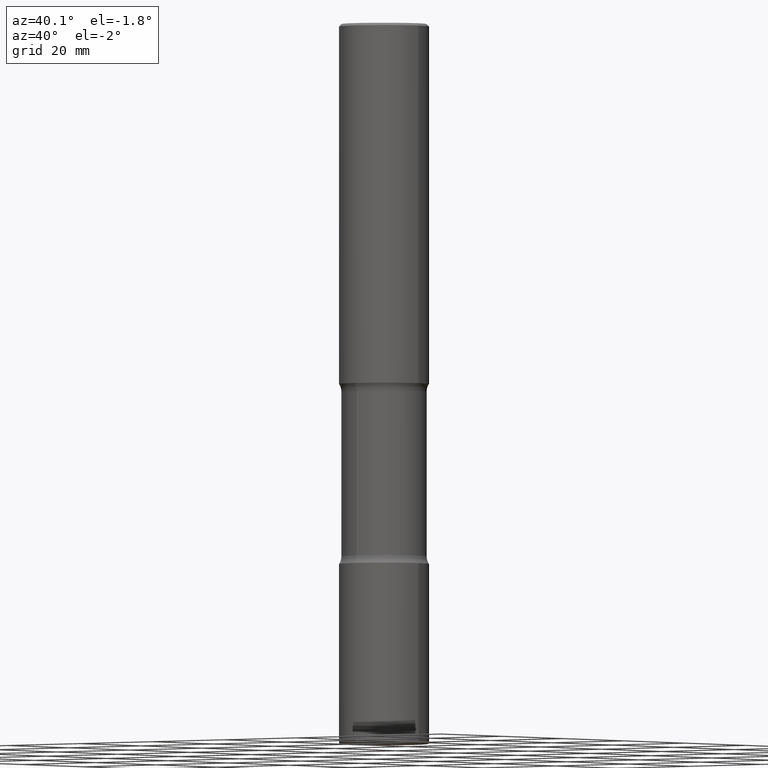
[diagram: clean part render]
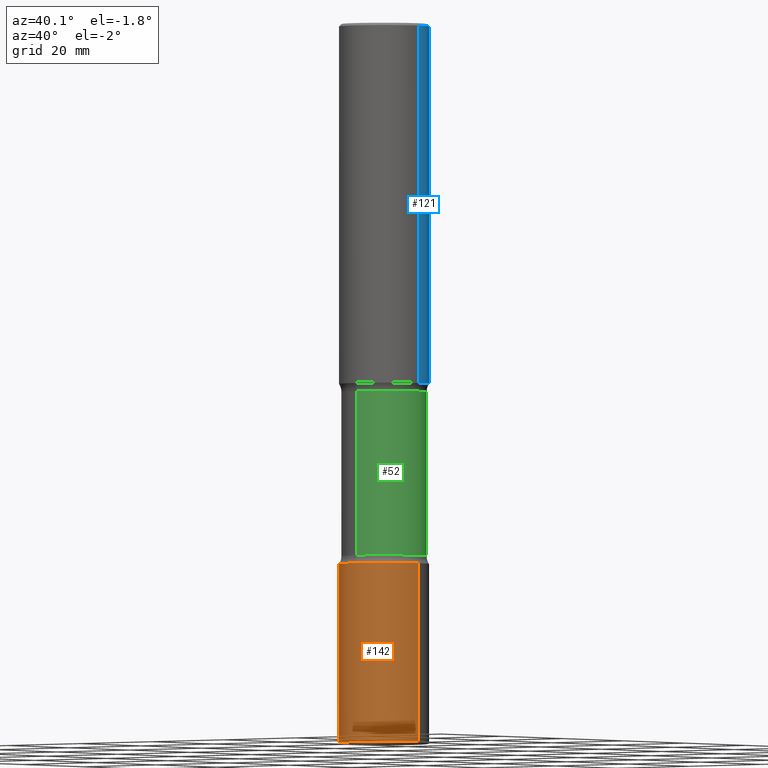
[diagram: same view with three faces highlighted in distinct colors, each labeled with its STEP entity id]
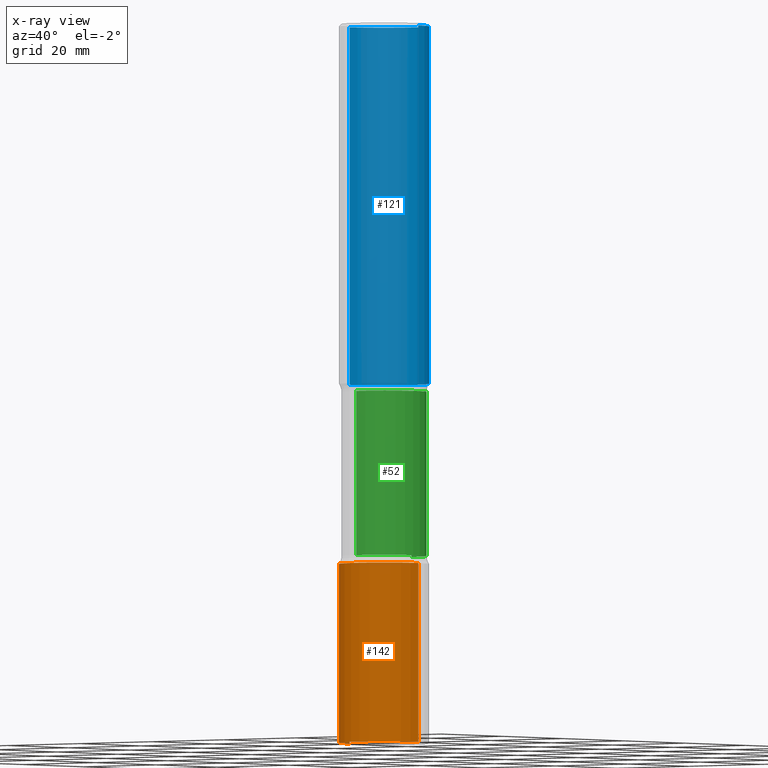
[diagram: x-ray of the same camera — body ghosted, the three highlighted faces saturated]
A machine part, auxiliary view with three faces highlighted in distinct colors.
The next image is the same camera in x-ray (body ghosted, the three faces saturated) — at least one of them is partly hidden behind the body in this view.
Their STEP definitions:

[orange] entity #142 — the highlighted cylindrical surface (partial cylindrical patch) has radius 9.525 mm, axis along (-0, 0, 1).
#19 = VERTEX_POINT ( 'NONE', #275 ) ;
#20 = ORIENTED_EDGE ( 'NONE', *, *, #39, .F. ) ;
#21 = CARTESIAN_POINT ( 'NONE',  ( -0.3750000000000003886, -1.564828436313191776E-14, -4.499999999999999112 ) ) ;
#37 = LINE ( 'NONE', #67, #48 ) ;
#39 = EDGE_CURVE ( 'NONE', #382, #310, #102, .T. ) ;
#44 = ORIENTED_EDGE ( 'NONE', *, *, #357, .T. ) ;
#48 = VECTOR ( 'NONE', #377, 39.37007874015748143 ) ;
#59 = DIRECTION ( 'NONE',  ( -2.445468806185136597E-29, 3.491481338843145583E-15, 1.000000000000000000 ) ) ;
#67 = CARTESIAN_POINT ( 'NONE',  ( 0.3750000000000003886, -2.618611004132352383E-15, 1.828566290923477884E-29 ) ) ;
#102 = LINE ( 'NONE', #356, #187 ) ;
#115 = DIRECTION ( 'NONE',  ( 1.000000000000000000, -6.982962677686267499E-15, 0.000000000000000000 ) ) ;
#119 = DIRECTION ( 'NONE',  ( -2.445468806185136597E-29, 3.491481338843145583E-15, 1.000000000000000000 ) ) ;
#132 = ORIENTED_EDGE ( 'NONE', *, *, #224, .F. ) ;
#136 = CARTESIAN_POINT ( 'NONE',  ( 0.000000000000000000, 0.000000000000000000, 0.000000000000000000 ) ) ;
#142 = ADVANCED_FACE ( 'NONE', ( #268 ), #146, .T. ) ;
#143 = DIRECTION ( 'NONE',  ( -2.445468806185136877E-29, 3.491481338843145188E-15, 1.000000000000000000 ) ) ;
#144 = CIRCLE ( 'NONE', #342, 0.3750000000000003886 ) ;
#146 = CYLINDRICAL_SURFACE ( 'NONE', #484, 0.3750000000000003886 ) ;
#150 = CARTESIAN_POINT ( 'NONE',  ( 0.3750000000000006661, -2.353258422380279265E-14, -5.989999999999999325 ) ) ;
#163 = DIRECTION ( 'NONE',  ( 1.000000000000000000, -6.982962677686265922E-15, 0.000000000000000000 ) ) ;
#187 = VECTOR ( 'NONE', #143, 39.37007874015748143 ) ;
#224 = EDGE_CURVE ( 'NONE', #310, #19, #144, .T. ) ;
#251 = VERTEX_POINT ( 'NONE', #150 ) ;
#257 = ORIENTED_EDGE ( 'NONE', *, *, #415, .T. ) ;
#268 = FACE_OUTER_BOUND ( 'NONE', #472, .T. ) ;
#275 = CARTESIAN_POINT ( 'NONE',  ( 0.3750000000000003886, -1.833027702892650691E-14, -4.499999999999999112 ) ) ;
#310 = VERTEX_POINT ( 'NONE', #21 ) ;
#342 = AXIS2_PLACEMENT_3D ( 'NONE', #402, #59, #163 ) ;
#356 = CARTESIAN_POINT ( 'NONE',  ( -0.3750000000000003886, 2.664535259100378458E-15, -1.844600658845591560E-29 ) ) ;
#357 = EDGE_CURVE ( 'NONE', #382, #251, #360, .T. ) ;
#360 = CIRCLE ( 'NONE', #376, 0.3750000000000002776 ) ;
#362 = DIRECTION ( 'NONE',  ( 1.000000000000000000, -6.982962677686265922E-15, 4.876176775795935793E-29 ) ) ;
#376 = AXIS2_PLACEMENT_3D ( 'NONE', #422, #119, #115 ) ;
#377 = DIRECTION ( 'NONE',  ( -2.445468806185136877E-29, 3.491481338843145188E-15, 1.000000000000000000 ) ) ;
#382 = VERTEX_POINT ( 'NONE', #463 ) ;
#402 = CARTESIAN_POINT ( 'NONE',  ( 1.100460962783311244E-28, -1.571166602479415374E-14, -4.499999999999999112 ) ) ;
#415 = EDGE_CURVE ( 'NONE', #251, #19, #37, .T. ) ;
#422 = CARTESIAN_POINT ( 'NONE',  ( 1.464835814904896579E-28, -2.091397321967043948E-14, -5.989999999999999325 ) ) ;
#463 = CARTESIAN_POINT ( 'NONE',  ( -0.3750000000000006661, -1.824943796057005747E-14, -5.989999999999999325 ) ) ;
#472 = EDGE_LOOP ( 'NONE', ( #20, #44, #257, #132 ) ) ;
#484 = AXIS2_PLACEMENT_3D ( 'NONE', #136, #487, #362 ) ;
#487 = DIRECTION ( 'NONE',  ( -2.445468806185136597E-29, 3.491481338843145583E-15, 1.000000000000000000 ) ) ;

[blue] entity #121 — the highlighted cylindrical surface (partial cylindrical patch) has radius 9.525 mm, axis along (-0, 0, 1).
#13 = ORIENTED_EDGE ( 'NONE', *, *, #516, .F. ) ;
#29 = AXIS2_PLACEMENT_3D ( 'NONE', #135, #272, #558 ) ;
#75 = DIRECTION ( 'NONE',  ( -2.445468806185136597E-29, 3.491481338843145583E-15, 1.000000000000000000 ) ) ;
#76 = VERTEX_POINT ( 'NONE', #106 ) ;
#80 = CARTESIAN_POINT ( 'NONE',  ( -0.3750000000000002220, 2.664535259100377275E-15, -1.844600658845590719E-29 ) ) ;
#94 = DIRECTION ( 'NONE',  ( 1.000000000000000000, -6.982962677686266711E-15, 4.876176775795935793E-29 ) ) ;
#101 = CARTESIAN_POINT ( 'NONE',  ( 0.000000000000000000, 0.000000000000000000, 0.000000000000000000 ) ) ;
#106 = CARTESIAN_POINT ( 'NONE',  ( -0.3750000000000001110, 2.548781377355487113E-15, -0.02000000000000006981 ) ) ;
#116 = CIRCLE ( 'NONE', #29, 0.3750000000000003886 ) ;
#121 = ADVANCED_FACE ( 'NONE', ( #148 ), #488, .T. ) ;
#128 = DIRECTION ( 'NONE',  ( 1.000000000000000000, -6.982962677686265922E-15, 0.000000000000000000 ) ) ;
#135 = CARTESIAN_POINT ( 'NONE',  ( 7.336406418555407548E-29, -1.047444401652943320E-14, -2.999999999999999112 ) ) ;
#148 = FACE_OUTER_BOUND ( 'NONE', #183, .T. ) ;
#172 = VERTEX_POINT ( 'NONE', #319 ) ;
#182 = LINE ( 'NONE', #270, #353 ) ;
#183 = EDGE_LOOP ( 'NONE', ( #329, #285, #514, #13 ) ) ;
#186 = VERTEX_POINT ( 'NONE', #284 ) ;
#202 = CIRCLE ( 'NONE', #370, 0.3750000000000001110 ) ;
#209 = LINE ( 'NONE', #80, #311 ) ;
#223 = DIRECTION ( 'NONE',  ( -2.445468806185136877E-29, 3.491481338843145188E-15, 1.000000000000000000 ) ) ;
#270 = CARTESIAN_POINT ( 'NONE',  ( 0.3750000000000002220, -2.618611004132351594E-15, 1.828566290923477043E-29 ) ) ;
#272 = DIRECTION ( 'NONE',  ( -2.445468806185136597E-29, 3.491481338843145583E-15, 1.000000000000000000 ) ) ;
#284 = CARTESIAN_POINT ( 'NONE',  ( 0.3750000000000001110, -2.642516375941188423E-15, -0.02000000000000006981 ) ) ;
#285 = ORIENTED_EDGE ( 'NONE', *, *, #317, .T. ) ;
#311 = VECTOR ( 'NONE', #426, 39.37007874015748143 ) ;
#317 = EDGE_CURVE ( 'NONE', #507, #76, #209, .T. ) ;
#319 = CARTESIAN_POINT ( 'NONE',  ( 0.3750000000000003886, -1.309305502066178637E-14, -2.999999999999999112 ) ) ;
#329 = ORIENTED_EDGE ( 'NONE', *, *, #496, .T. ) ;
#353 = VECTOR ( 'NONE', #223, 39.37007874015748143 ) ;
#355 = EDGE_CURVE ( 'NONE', #186, #76, #202, .T. ) ;
#359 = AXIS2_PLACEMENT_3D ( 'NONE', #101, #483, #94 ) ;
#370 = AXIS2_PLACEMENT_3D ( 'NONE', #417, #75, #128 ) ;
#397 = CARTESIAN_POINT ( 'NONE',  ( -0.3750000000000003886, -2.607601562552767029E-15, -2.999999999999999112 ) ) ;
#417 = CARTESIAN_POINT ( 'NONE',  ( 4.890937612370289799E-31, -6.982962677686315028E-17, -0.02000000000000006981 ) ) ;
#426 = DIRECTION ( 'NONE',  ( -2.445468806185136877E-29, 3.491481338843145188E-15, 1.000000000000000000 ) ) ;
#483 = DIRECTION ( 'NONE',  ( -2.445468806185136597E-29, 3.491481338843145583E-15, 1.000000000000000000 ) ) ;
#488 = CYLINDRICAL_SURFACE ( 'NONE', #359, 0.3750000000000002220 ) ;
#496 = EDGE_CURVE ( 'NONE', #172, #507, #116, .T. ) ;
#507 = VERTEX_POINT ( 'NONE', #397 ) ;
#514 = ORIENTED_EDGE ( 'NONE', *, *, #355, .F. ) ;
#516 = EDGE_CURVE ( 'NONE', #172, #186, #182, .T. ) ;
#558 = DIRECTION ( 'NONE',  ( 1.000000000000000000, -6.982962677686265922E-15, 0.000000000000000000 ) ) ;

[green] entity #52 — the highlighted cylindrical surface (partial cylindrical patch) has radius 9.0488 mm, axis along (0, -0, -1).
#5 = FACE_OUTER_BOUND ( 'NONE', #156, .T. ) ;
#18 = DIRECTION ( 'NONE',  ( 6.982962677686265133E-15, 1.000000000000000000, -3.067338098149347905E-15 ) ) ;
#28 = AXIS2_PLACEMENT_3D ( 'NONE', #414, #203, #18 ) ;
#38 = ORIENTED_EDGE ( 'NONE', *, *, #556, .T. ) ;
#40 = CIRCLE ( 'NONE', #28, 0.3562500000000000111 ) ;
#52 = ADVANCED_FACE ( 'NONE', ( #5 ), #193, .T. ) ;
#66 = DIRECTION ( 'NONE',  ( 6.982962677686265133E-15, 1.000000000000000000, -3.067338098149347905E-15 ) ) ;
#83 = ORIENTED_EDGE ( 'NONE', *, *, #90, .F. ) ;
#85 = CARTESIAN_POINT ( 'NONE',  ( -2.508369580435107128E-15, -0.3562500000000154987, -4.434152164044668609 ) ) ;
#90 = EDGE_CURVE ( 'NONE', #408, #445, #366, .T. ) ;
#98 = EDGE_CURVE ( 'NONE', #494, #505, #291, .T. ) ;
#131 = CARTESIAN_POINT ( 'NONE',  ( 7.407401089244291879E-29, -1.083328454578828421E-14, -3.065847835955329614 ) ) ;
#156 = EDGE_LOOP ( 'NONE', ( #38, #419, #245, #83 ) ) ;
#159 = DIRECTION ( 'NONE',  ( 2.508247471065963170E-29, -3.401578717594097873E-15, -1.000000000000000000 ) ) ;
#161 = CARTESIAN_POINT ( 'NONE',  ( -2.444052411705960129E-15, -0.3562500000000208278, -5.999999999999998224 ) ) ;
#189 = CARTESIAN_POINT ( 'NONE',  ( 2.487680453925840195E-15, 0.3562499999999844680, -4.434152164044670386 ) ) ;
#190 = EDGE_CURVE ( 'NONE', #445, #505, #40, .T. ) ;
#193 = CYLINDRICAL_SURFACE ( 'NONE', #375, 0.3562500000000000111 ) ;
#203 = DIRECTION ( 'NONE',  ( 2.508247471065963170E-29, -3.401578717594097873E-15, -1.000000000000000000 ) ) ;
#212 = CARTESIAN_POINT ( 'NONE',  ( 1.476698083443205790E-28, -2.081403410118529621E-14, -5.999999999999999112 ) ) ;
#225 = DIRECTION ( 'NONE',  ( 2.508247471065963170E-29, -3.401578717594097873E-15, -1.000000000000000000 ) ) ;
#226 = VECTOR ( 'NONE', #498, 39.37007874015748143 ) ;
#245 = ORIENTED_EDGE ( 'NONE', *, *, #190, .F. ) ;
#247 = AXIS2_PLACEMENT_3D ( 'NONE', #131, #225, #394 ) ;
#291 = LINE ( 'NONE', #161, #443 ) ;
#343 = CARTESIAN_POINT ( 'NONE',  ( 2.487680453925806274E-15, 0.3562499999999891309, -3.065847835955330503 ) ) ;
#366 = LINE ( 'NONE', #532, #226 ) ;
#375 = AXIS2_PLACEMENT_3D ( 'NONE', #212, #159, #66 ) ;
#394 = DIRECTION ( 'NONE',  ( 6.982962677686265133E-15, 1.000000000000000000, -3.067338098149347905E-15 ) ) ;
#408 = VERTEX_POINT ( 'NONE', #343 ) ;
#414 = CARTESIAN_POINT ( 'NONE',  ( 1.083944695982298980E-28, -1.548767942740887449E-14, -4.434152164044669497 ) ) ;
#419 = ORIENTED_EDGE ( 'NONE', *, *, #98, .T. ) ;
#443 = VECTOR ( 'NONE', #460, 39.37007874015748143 ) ;
#444 = CIRCLE ( 'NONE', #247, 0.3562500000000000111 ) ;
#445 = VERTEX_POINT ( 'NONE', #189 ) ;
#460 = DIRECTION ( 'NONE',  ( 2.508247471065963170E-29, -3.401578717594097873E-15, -1.000000000000000000 ) ) ;
#494 = VERTEX_POINT ( 'NONE', #557 ) ;
#498 = DIRECTION ( 'NONE',  ( 2.508247471065963170E-29, -3.401578717594097873E-15, -1.000000000000000000 ) ) ;
#505 = VERTEX_POINT ( 'NONE', #85 ) ;
#532 = CARTESIAN_POINT ( 'NONE',  ( 2.487680453925879638E-15, 0.3562499999999791389, -6.000000000000000888 ) ) ;
#556 = EDGE_CURVE ( 'NONE', #408, #494, #444, .T. ) ;
#557 = CARTESIAN_POINT ( 'NONE',  ( -2.508369580435144205E-15, -0.3562500000000108358, -3.065847835955328282 ) ) ;